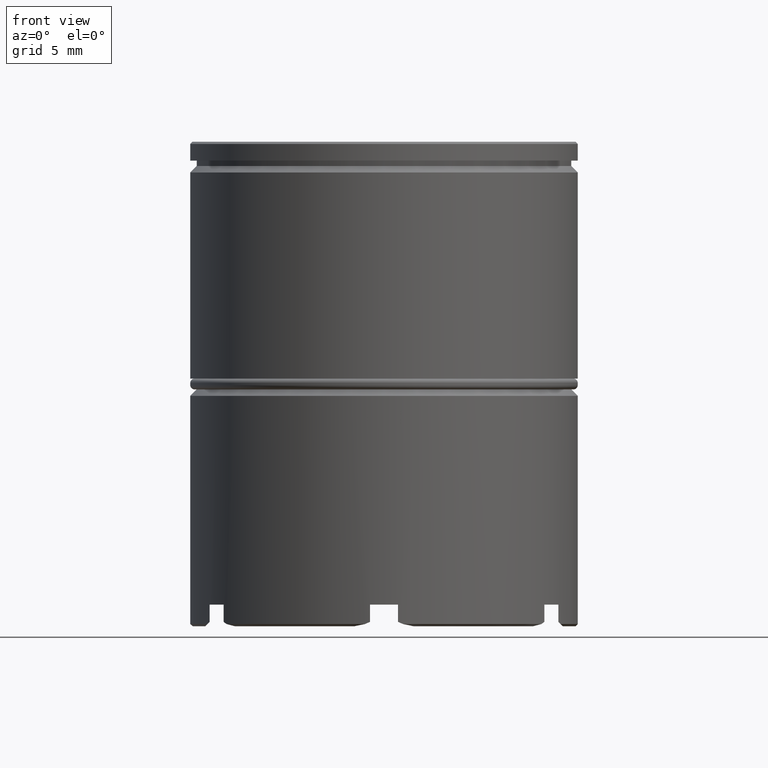
[diagram: clean part render]
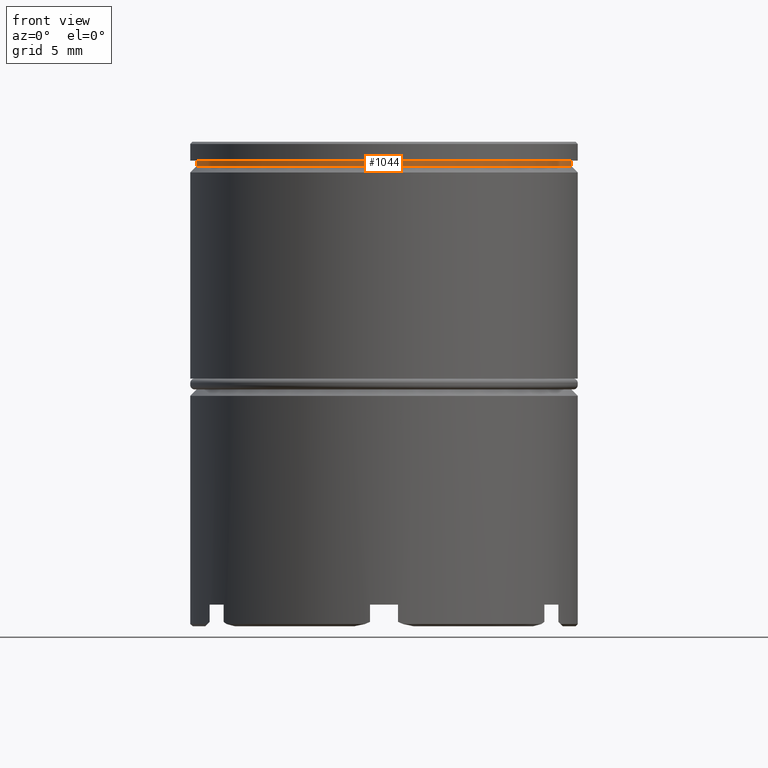
[diagram: same view with one face highlighted and labeled with its STEP entity id]
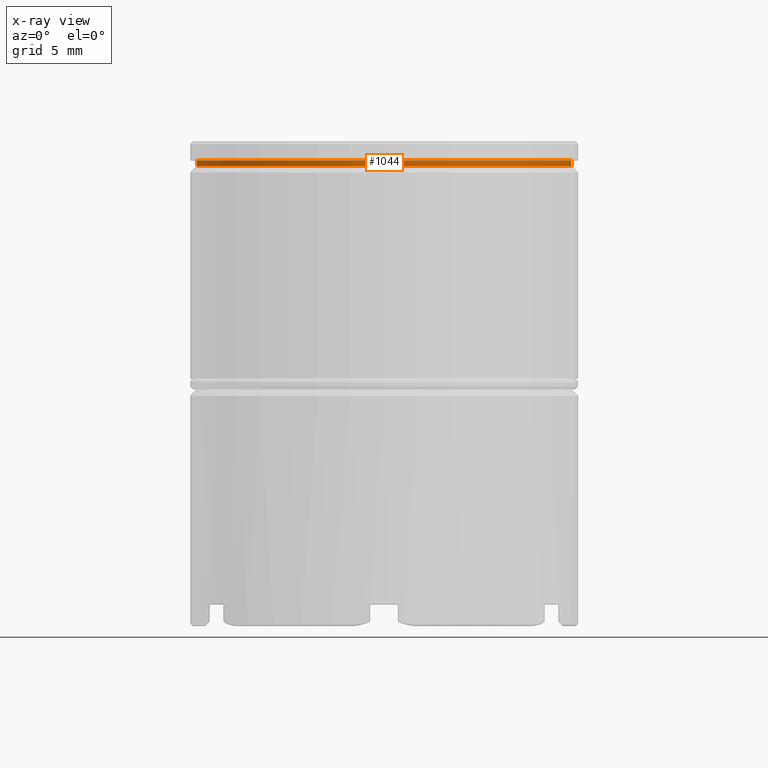
[diagram: x-ray of the same camera — body ghosted, the highlighted face saturated]
A machine part, front view. The second image highlights one B-rep face of the part: STEP entity #1044.
The next image is the same camera in x-ray: the body ghosted, the highlighted face saturated — about 0% of this face is hidden behind the body in this view.
In plain terms, the highlighted cylindrical surface (partial cylindrical patch) has radius 8.7 mm, axis along (-0, -0, 1).
Its self-contained STEP definition (entity closure, byte-faithful):
#47 = EDGE_LOOP ( 'NONE', ( #721, #100, #431, #794 ) ) ;
#51 = CIRCLE ( 'NONE', #1288, 8.699999999999999289 ) ;
#100 = ORIENTED_EDGE ( 'NONE', *, *, #102, .T. ) ;
#102 = EDGE_CURVE ( 'NONE', #541, #371, #51, .T. ) ;
#134 = DIRECTION ( 'NONE',  ( 1.000000000000000000, 0.000000000000000000, 0.000000000000000000 ) ) ;
#266 = CARTESIAN_POINT ( 'NONE',  ( 0.000000000000000000, 0.000000000000000000, -0.8749999999999998890 ) ) ;
#280 = VERTEX_POINT ( 'NONE', #1634 ) ;
#371 = VERTEX_POINT ( 'NONE', #728 ) ;
#375 = CYLINDRICAL_SURFACE ( 'NONE', #500, 8.699999999999999289 ) ;
#420 = CIRCLE ( 'NONE', #1520, 8.699999999999999289 ) ;
#431 = ORIENTED_EDGE ( 'NONE', *, *, #903, .T. ) ;
#500 = AXIS2_PLACEMENT_3D ( 'NONE', #881, #1387, #134 ) ;
#510 = FACE_OUTER_BOUND ( 'NONE', #47, .T. ) ;
#541 = VERTEX_POINT ( 'NONE', #1377 ) ;
#591 = LINE ( 'NONE', #1082, #1312 ) ;
#707 = CARTESIAN_POINT ( 'NONE',  ( -8.699999999999999289, 1.065442715258197248E-15, 0.000000000000000000 ) ) ;
#721 = ORIENTED_EDGE ( 'NONE', *, *, #1257, .F. ) ;
#723 = LINE ( 'NONE', #707, #1550 ) ;
#728 = CARTESIAN_POINT ( 'NONE',  ( 8.699999999999999289, 0.000000000000000000, -1.125000000000000222 ) ) ;
#794 = ORIENTED_EDGE ( 'NONE', *, *, #1124, .F. ) ;
#881 = CARTESIAN_POINT ( 'NONE',  ( 0.000000000000000000, 0.000000000000000000, 0.000000000000000000 ) ) ;
#903 = EDGE_CURVE ( 'NONE', #371, #1110, #591, .T. ) ;
#931 = DIRECTION ( 'NONE',  ( 1.000000000000000000, 0.000000000000000000, 0.000000000000000000 ) ) ;
#988 = CARTESIAN_POINT ( 'NONE',  ( 0.000000000000000000, 0.000000000000000000, -1.125000000000000222 ) ) ;
#998 = DIRECTION ( 'NONE',  ( 1.000000000000000000, 0.000000000000000000, 0.000000000000000000 ) ) ;
#1044 = ADVANCED_FACE ( 'NONE', ( #510 ), #375, .T. ) ;
#1047 = CARTESIAN_POINT ( 'NONE',  ( 8.699999999999999289, 0.000000000000000000, -0.8749999999999998890 ) ) ;
#1082 = CARTESIAN_POINT ( 'NONE',  ( 8.699999999999999289, 0.000000000000000000, 0.000000000000000000 ) ) ;
#1108 = DIRECTION ( 'NONE',  ( -0.000000000000000000, -0.000000000000000000, 1.000000000000000000 ) ) ;
#1110 = VERTEX_POINT ( 'NONE', #1047 ) ;
#1124 = EDGE_CURVE ( 'NONE', #280, #1110, #420, .T. ) ;
#1200 = DIRECTION ( 'NONE',  ( -0.000000000000000000, -0.000000000000000000, 1.000000000000000000 ) ) ;
#1257 = EDGE_CURVE ( 'NONE', #541, #280, #723, .T. ) ;
#1288 = AXIS2_PLACEMENT_3D ( 'NONE', #988, #1108, #998 ) ;
#1312 = VECTOR ( 'NONE', #1587, 1000.000000000000000 ) ;
#1377 = CARTESIAN_POINT ( 'NONE',  ( -8.699999999999999289, 1.065442715258197248E-15, -1.125000000000000222 ) ) ;
#1387 = DIRECTION ( 'NONE',  ( -0.000000000000000000, -0.000000000000000000, 1.000000000000000000 ) ) ;
#1520 = AXIS2_PLACEMENT_3D ( 'NONE', #266, #1541, #931 ) ;
#1541 = DIRECTION ( 'NONE',  ( -0.000000000000000000, -0.000000000000000000, 1.000000000000000000 ) ) ;
#1550 = VECTOR ( 'NONE', #1200, 1000.000000000000000 ) ;
#1587 = DIRECTION ( 'NONE',  ( -0.000000000000000000, -0.000000000000000000, 1.000000000000000000 ) ) ;
#1634 = CARTESIAN_POINT ( 'NONE',  ( -8.699999999999999289, 1.065442715258197248E-15, -0.8749999999999998890 ) ) ;